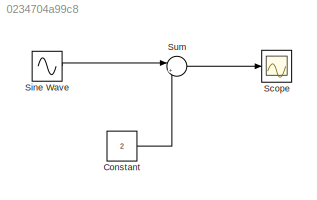
MODEL slx_0234704a99c8
KIND model
BLOCK [Constant] Constant
  Value = 2
BLOCK [Scope] Scope
  Floating = off
  NumInputPorts = 1
  Ports = [1]
  ShowLegends = off
BLOCK [Sin] Sine Wave
  Frequency = 10000
  Ports = [0, 1]
  SampleTime = 1/48000
  Samples = 1
BLOCK [Sum] Sum
  IconShape = round
  InputSameDT = off
  Inputs = |++
  OutDataTypeStr = Inherit: Inherit via internal rule
  Ports = [2, 1]
  SaturateOnIntegerOverflow = off
LINE Constant:1 -> Sum:2
LINE Sine Wave:1 -> Sum:1
LINE Sum:1 -> Scope:1
